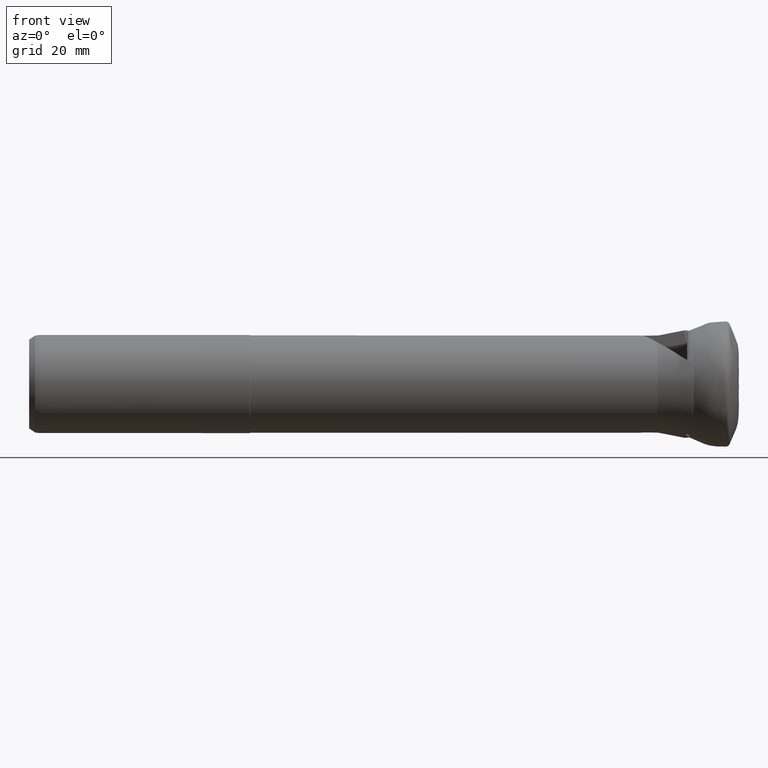
[diagram: clean part render]
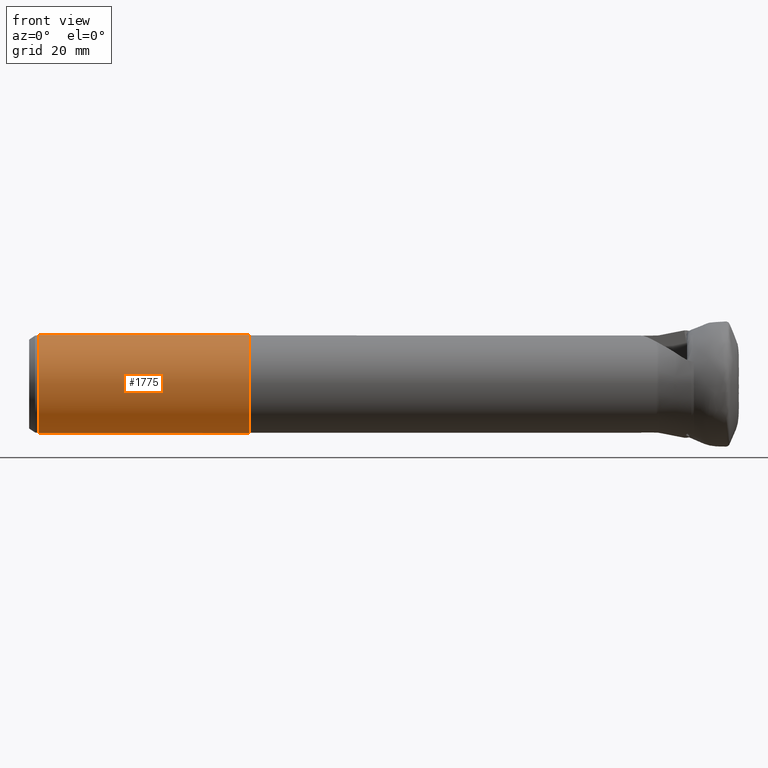
[diagram: same view with one face highlighted and labeled with its STEP entity id]
A machine part, front view. The second image highlights one B-rep face of the part: STEP entity #1775.
In plain terms, the highlighted cylindrical surface (bore or boss wall) has radius 12.5 mm, axis along (-1, -0, -0).
Its self-contained STEP definition (entity closure, byte-faithful):
#48 = ORIENTED_EDGE ( 'NONE', *, *, #3677, .T. ) ;
#242 = ORIENTED_EDGE ( 'NONE', *, *, #5118, .T. ) ;
#268 = CIRCLE ( 'NONE', #1040, 12.50000000000000000 ) ;
#409 = ORIENTED_EDGE ( 'NONE', *, *, #2549, .T. ) ;
#564 = ORIENTED_EDGE ( 'NONE', *, *, #2470, .T. ) ;
#731 = CARTESIAN_POINT ( 'NONE',  ( -119.9052591770394800, 9.700000000000022400, 7.884161337770780900 ) ) ;
#741 = DIRECTION ( 'NONE',  ( -1.000000000000000000, -0.0000000000000000000, -0.0000000000000000000 ) ) ;
#743 = CARTESIAN_POINT ( 'NONE',  ( -162.9052591770394500, 9.700000000000020600, -7.884161337770780900 ) ) ;
#756 = VERTEX_POINT ( 'NONE', #3461 ) ;
#856 = CARTESIAN_POINT ( 'NONE',  ( -153.9552591770394700, 9.700000000000022400, -7.884161337770780900 ) ) ;
#870 = LINE ( 'NONE', #1326, #1913 ) ;
#884 = ORIENTED_EDGE ( 'NONE', *, *, #4890, .T. ) ;
#915 = DIRECTION ( 'NONE',  ( 0.0000000000000000000, 0.0000000000000000000, -1.000000000000000000 ) ) ;
#916 = DIRECTION ( 'NONE',  ( -1.000000000000000000, 0.0000000000000000000, 0.0000000000000000000 ) ) ;
#922 = CARTESIAN_POINT ( 'NONE',  ( -177.4052591770391700, 0.0000000000000000000, 0.0000000000000000000 ) ) ;
#1040 = AXIS2_PLACEMENT_3D ( 'NONE', #922, #916, #915 ) ;
#1218 = CARTESIAN_POINT ( 'NONE',  ( -153.9552591770394700, 9.700000000000022400, 7.884161337770780900 ) ) ;
#1275 = CARTESIAN_POINT ( 'NONE',  ( -177.4052591770391700, 9.700000000000025900, -7.884161337770777300 ) ) ;
#1286 = VERTEX_POINT ( 'NONE', #4749 ) ;
#1326 = CARTESIAN_POINT ( 'NONE',  ( -119.9052591770394800, 9.700000000000025900, 7.884161337770777300 ) ) ;
#1444 = LINE ( 'NONE', #731, #2435 ) ;
#1627 = CARTESIAN_POINT ( 'NONE',  ( -162.9052591770394500, 9.700000000000020600, 7.884161337770777300 ) ) ;
#1736 = CARTESIAN_POINT ( 'NONE',  ( -153.9552591770394700, 9.700000000000022400, -7.884161337770780900 ) ) ;
#1769 = VECTOR ( 'NONE', #4828, 1000.000000000000000 ) ;
#1773 = CARTESIAN_POINT ( 'NONE',  ( -153.9552591770394700, 9.700000000000022400, 7.884161337770780900 ) ) ;
#1775 = ADVANCED_FACE ( 'NONE', ( #2028, #1902, #2886 ), #3919, .T. ) ;
#1836 = EDGE_LOOP ( 'NONE', ( #409, #2097, #4935, #884 ) ) ;
#1839 = VERTEX_POINT ( 'NONE', #1627 ) ;
#1902 = FACE_OUTER_BOUND ( 'NONE', #3515, .T. ) ;
#1913 = VECTOR ( 'NONE', #5601, 1000.000000000000000 ) ;
#1930 = VERTEX_POINT ( 'NONE', #1275 ) ;
#1996 = DIRECTION ( 'NONE',  ( -1.000000000000000000, -0.0000000000000000000, -0.0000000000000000000 ) ) ;
#2006 = CARTESIAN_POINT ( 'NONE',  ( -157.8524378604250600, 13.59717868338557000, -3.089404912919581300 ) ) ;
#2015 = DIRECTION ( 'NONE',  ( 0.0000000000000000000, 0.0000000000000000000, 1.000000000000000000 ) ) ;
#2028 = FACE_OUTER_BOUND ( 'NONE', #4061, .T. ) ;
#2060 = CARTESIAN_POINT ( 'NONE',  ( -119.9052591770394800, 0.0000000000000000000, 0.0000000000000000000 ) ) ;
#2097 = ORIENTED_EDGE ( 'NONE', *, *, #5169, .T. ) ;
#2270 = CARTESIAN_POINT ( 'NONE',  ( -157.8524378604250600, 13.59717868338556800, 3.089404912919585700 ) ) ;
#2320 =( BOUNDED_CURVE ( )  B_SPLINE_CURVE ( 3, ( #4196, #4386, #4159, #4157 ),
 .UNSPECIFIED., .F., .T. ) 
 B_SPLINE_CURVE_WITH_KNOTS ( ( 4, 4 ),
 ( 2.459095336313824400, 3.824089970865761900 ),
 .UNSPECIFIED. ) 
 CURVE ( )  GEOMETRIC_REPRESENTATION_ITEM ( )  RATIONAL_B_SPLINE_CURVE ( ( 1.000000000000000000, 0.8506666666666680100, 0.8506666666666680100, 1.000000000000000000 ) ) 
 REPRESENTATION_ITEM ( '' )  );
#2352 = DIRECTION ( 'NONE',  ( 0.0000000000000000000, 0.0000000000000000000, 1.000000000000000000 ) ) ;
#2357 = DIRECTION ( 'NONE',  ( 1.000000000000000000, -0.0000000000000000000, -0.0000000000000000000 ) ) ;
#2379 = CARTESIAN_POINT ( 'NONE',  ( -123.7320540962826200, 0.0000000000000000000, 0.0000000000000000000 ) ) ;
#2435 = VECTOR ( 'NONE', #741, 1000.000000000000000 ) ;
#2470 = EDGE_CURVE ( 'NONE', #1930, #2585, #3573, .T. ) ;
#2549 = EDGE_CURVE ( 'Kante180', #5493, #5564, #2625, .T. ) ;
#2585 = VERTEX_POINT ( 'NONE', #743 ) ;
#2625 =( BOUNDED_CURVE ( )  B_SPLINE_CURVE ( 3, ( #1773, #2270, #2006, #1736 ),
 .UNSPECIFIED., .F., .F. ) 
 B_SPLINE_CURVE_WITH_KNOTS ( ( 4, 4 ),
 ( 5.600687989903617500, 6.965682624455555000 ),
 .UNSPECIFIED. ) 
 CURVE ( )  GEOMETRIC_REPRESENTATION_ITEM ( )  RATIONAL_B_SPLINE_CURVE ( ( 1.000000000000000000, 0.8506666666666680100, 0.8506666666666680100, 1.000000000000000000 ) ) 
 REPRESENTATION_ITEM ( '' )  );
#2689 = VECTOR ( 'NONE', #2696, 1000.000000000000000 ) ;
#2696 = DIRECTION ( 'NONE',  ( 1.000000000000000000, 0.0000000000000000000, 0.0000000000000000000 ) ) ;
#2715 = CARTESIAN_POINT ( 'NONE',  ( -119.9052591770394800, 9.700000000000025900, -7.884161337770777300 ) ) ;
#2886 = FACE_BOUND ( 'NONE', #1836, .T. ) ;
#2899 = VERTEX_POINT ( 'NONE', #5690 ) ;
#3087 = AXIS2_PLACEMENT_3D ( 'NONE', #2060, #1996, #2015 ) ;
#3222 = ORIENTED_EDGE ( 'NONE', *, *, #4826, .F. ) ;
#3325 = ORIENTED_EDGE ( 'NONE', *, *, #4326, .F. ) ;
#3461 = CARTESIAN_POINT ( 'NONE',  ( -141.8552591770394700, 9.700000000000022400, 7.884161337770777300 ) ) ;
#3515 = EDGE_LOOP ( 'NONE', ( #564, #48, #242, #3222 ) ) ;
#3533 = CIRCLE ( 'NONE', #4723, 12.50000000000000000 ) ;
#3573 = LINE ( 'NONE', #2715, #2689 ) ;
#3677 = EDGE_CURVE ( 'Kante181', #2585, #1839, #2320, .T. ) ;
#3919 = CYLINDRICAL_SURFACE ( 'NONE', #3087, 12.50000000000000000 ) ;
#4061 = EDGE_LOOP ( 'NONE', ( #3325 ) ) ;
#4079 = CARTESIAN_POINT ( 'NONE',  ( -141.8552591770394700, 9.700000000000022400, 7.884161337770777300 ) ) ;
#4127 = CARTESIAN_POINT ( 'NONE',  ( -137.9580804936539700, 13.59717868338556800, 3.089404912919575500 ) ) ;
#4157 = CARTESIAN_POINT ( 'NONE',  ( -162.9052591770394500, 9.700000000000020600, 7.884161337770777300 ) ) ;
#4159 = CARTESIAN_POINT ( 'NONE',  ( -159.0080804936539500, 13.59717868338556600, 3.089404912919578600 ) ) ;
#4163 = CARTESIAN_POINT ( 'NONE',  ( -141.8552591770394700, 9.700000000000022400, -7.884161337770777300 ) ) ;
#4196 = CARTESIAN_POINT ( 'NONE',  ( -162.9052591770394500, 9.700000000000020600, -7.884161337770780900 ) ) ;
#4202 = CARTESIAN_POINT ( 'NONE',  ( -137.9580804936539700, 13.59717868338556800, -3.089404912919578200 ) ) ;
#4326 = EDGE_CURVE ( 'NONE', #5117, #5117, #3533, .T. ) ;
#4386 = CARTESIAN_POINT ( 'NONE',  ( -159.0080804936539500, 13.59717868338556800, -3.089404912919583100 ) ) ;
#4723 = AXIS2_PLACEMENT_3D ( 'NONE', #2379, #2357, #2352 ) ;
#4749 = CARTESIAN_POINT ( 'NONE',  ( -177.4052591770391700, 9.700000000000025900, 7.884161337770777300 ) ) ;
#4826 = EDGE_CURVE ( 'NONE', #1930, #1286, #268, .T. ) ;
#4828 = DIRECTION ( 'NONE',  ( 1.000000000000000000, 0.0000000000000000000, 0.0000000000000000000 ) ) ;
#4887 = CARTESIAN_POINT ( 'NONE',  ( -119.9052591770394800, 9.700000000000022400, -7.884161337770780900 ) ) ;
#4890 = EDGE_CURVE ( 'NONE', #756, #5493, #1444, .T. ) ;
#4935 = ORIENTED_EDGE ( 'NONE', *, *, #5273, .T. ) ;
#5117 = VERTEX_POINT ( 'NONE', #5605 ) ;
#5118 = EDGE_CURVE ( 'NONE', #1839, #1286, #870, .T. ) ;
#5169 = EDGE_CURVE ( 'NONE', #5564, #2899, #5499, .T. ) ;
#5273 = EDGE_CURVE ( 'Kante178', #2899, #756, #5321, .T. ) ;
#5321 =( BOUNDED_CURVE ( )  B_SPLINE_CURVE ( 3, ( #4163, #4202, #4127, #4079 ),
 .UNSPECIFIED., .F., .F. ) 
 B_SPLINE_CURVE_WITH_KNOTS ( ( 4, 4 ),
 ( 2.459095336313824800, 3.824089970865761400 ),
 .UNSPECIFIED. ) 
 CURVE ( )  GEOMETRIC_REPRESENTATION_ITEM ( )  RATIONAL_B_SPLINE_CURVE ( ( 1.000000000000000000, 0.8506666666666681300, 0.8506666666666681300, 1.000000000000000000 ) ) 
 REPRESENTATION_ITEM ( '' )  );
#5493 = VERTEX_POINT ( 'NONE', #1218 ) ;
#5499 = LINE ( 'NONE', #4887, #1769 ) ;
#5564 = VERTEX_POINT ( 'NONE', #856 ) ;
#5601 = DIRECTION ( 'NONE',  ( -1.000000000000000000, -0.0000000000000000000, -0.0000000000000000000 ) ) ;
#5605 = CARTESIAN_POINT ( 'NONE',  ( -123.7320540962826200, 0.0000000000000000000, 12.50000000000000000 ) ) ;
#5690 = CARTESIAN_POINT ( 'NONE',  ( -141.8552591770394700, 9.700000000000022400, -7.884161337770777300 ) ) ;